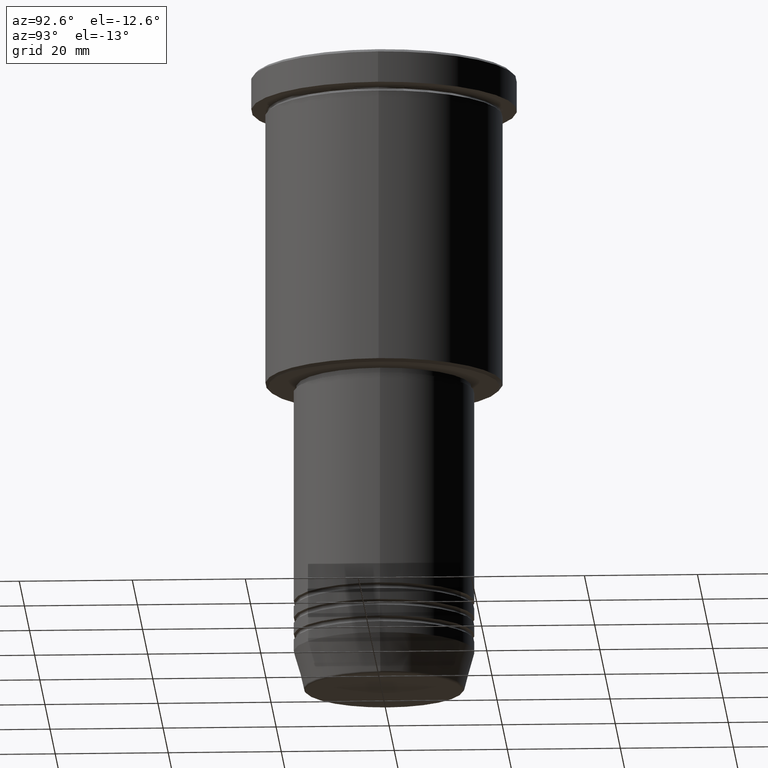
[diagram: clean part render]
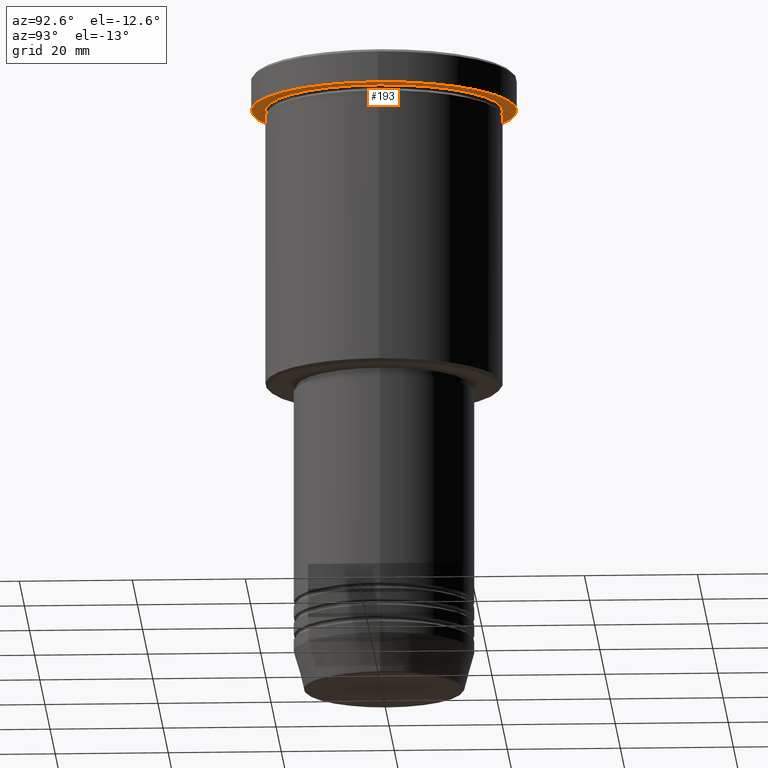
[diagram: same view with one face highlighted and labeled with its STEP entity id]
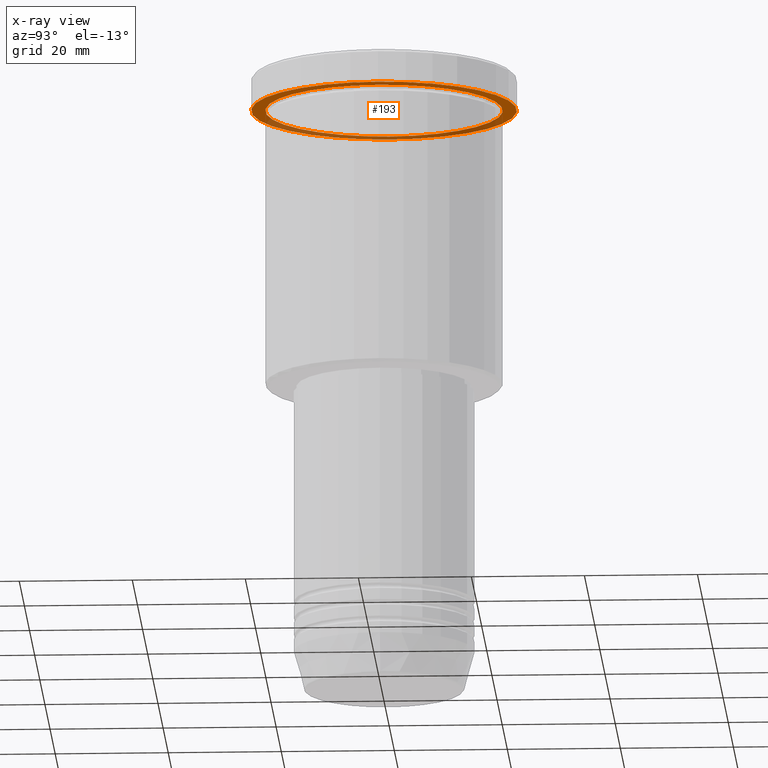
[diagram: x-ray of the same camera — body ghosted, the highlighted face saturated]
A machine part, auxiliary view. The second image highlights one B-rep face of the part: STEP entity #193.
The next image is the same camera in x-ray: the body ghosted, the highlighted face saturated — about 38% of this face is hidden behind the body in this view.
In plain terms, the highlighted planar face has unit normal (0, 0, -1).
Its self-contained STEP definition (entity closure, byte-faithful):
#44 = EDGE_CURVE ( 'NONE', #584, #63, #314, .T. ) ;
#63 = VERTEX_POINT ( 'NONE', #1063 ) ;
#80 = DIRECTION ( 'NONE',  ( 0.000000000000000000, 0.000000000000000000, -1.000000000000000000 ) ) ;
#82 = DIRECTION ( 'NONE',  ( 1.000000000000000000, 0.000000000000000000, 0.000000000000000000 ) ) ;
#90 = CARTESIAN_POINT ( 'NONE',  ( 21.00000000000000000, 2.571758278209441661E-15, -5.999999999999994671 ) ) ;
#112 = ORIENTED_EDGE ( 'NONE', *, *, #248, .T. ) ;
#151 = DIRECTION ( 'NONE',  ( -0.000000000000000000, -0.000000000000000000, 1.000000000000000000 ) ) ;
#169 = DIRECTION ( 'NONE',  ( -1.000000000000000000, 0.000000000000000000, 0.000000000000000000 ) ) ;
#170 = CARTESIAN_POINT ( 'NONE',  ( 0.000000000000000000, 0.000000000000000000, -5.999999999999994671 ) ) ;
#175 = DIRECTION ( 'NONE',  ( -1.000000000000000000, 0.000000000000000000, 0.000000000000000000 ) ) ;
#178 = CARTESIAN_POINT ( 'NONE',  ( 23.50000000000000000, 0.000000000000000000, -5.999999999999994671 ) ) ;
#189 = ORIENTED_EDGE ( 'NONE', *, *, #44, .F. ) ;
#193 = ADVANCED_FACE ( 'NONE', ( #285, #710 ), #363, .T. ) ;
#246 = AXIS2_PLACEMENT_3D ( 'NONE', #1163, #896, #82 ) ;
#248 = EDGE_CURVE ( 'NONE', #1090, #1039, #448, .T. ) ;
#266 = CIRCLE ( 'NONE', #246, 23.50000000000000000 ) ;
#285 = FACE_BOUND ( 'NONE', #309, .T. ) ;
#298 = AXIS2_PLACEMENT_3D ( 'NONE', #1178, #80, #460 ) ;
#309 = EDGE_LOOP ( 'NONE', ( #580, #112 ) ) ;
#314 = CIRCLE ( 'NONE', #542, 23.50000000000000000 ) ;
#363 = PLANE ( 'NONE',  #298 ) ;
#417 = CARTESIAN_POINT ( 'NONE',  ( 0.000000000000000000, 0.000000000000000000, -5.999999999999994671 ) ) ;
#448 = CIRCLE ( 'NONE', #899, 21.00000000000000000 ) ;
#459 = DIRECTION ( 'NONE',  ( -0.000000000000000000, -0.000000000000000000, 1.000000000000000000 ) ) ;
#460 = DIRECTION ( 'NONE',  ( -1.000000000000000000, 0.000000000000000000, -0.000000000000000000 ) ) ;
#486 = CIRCLE ( 'NONE', #1115, 21.00000000000000000 ) ;
#496 = CARTESIAN_POINT ( 'NONE',  ( -21.00000000000000000, 0.000000000000000000, -5.999999999999994671 ) ) ;
#517 = DIRECTION ( 'NONE',  ( 1.000000000000000000, 0.000000000000000000, 0.000000000000000000 ) ) ;
#542 = AXIS2_PLACEMENT_3D ( 'NONE', #417, #151, #517 ) ;
#580 = ORIENTED_EDGE ( 'NONE', *, *, #665, .T. ) ;
#584 = VERTEX_POINT ( 'NONE', #178 ) ;
#625 = DIRECTION ( 'NONE',  ( -0.000000000000000000, -0.000000000000000000, 1.000000000000000000 ) ) ;
#665 = EDGE_CURVE ( 'NONE', #1039, #1090, #486, .T. ) ;
#683 = EDGE_LOOP ( 'NONE', ( #189, #780 ) ) ;
#710 = FACE_OUTER_BOUND ( 'NONE', #683, .T. ) ;
#780 = ORIENTED_EDGE ( 'NONE', *, *, #1152, .F. ) ;
#896 = DIRECTION ( 'NONE',  ( -0.000000000000000000, -0.000000000000000000, 1.000000000000000000 ) ) ;
#899 = AXIS2_PLACEMENT_3D ( 'NONE', #170, #625, #175 ) ;
#981 = CARTESIAN_POINT ( 'NONE',  ( 0.000000000000000000, 0.000000000000000000, -5.999999999999994671 ) ) ;
#1039 = VERTEX_POINT ( 'NONE', #496 ) ;
#1063 = CARTESIAN_POINT ( 'NONE',  ( -23.50000000000000000, 2.877919977996280320E-15, -5.999999999999994671 ) ) ;
#1090 = VERTEX_POINT ( 'NONE', #90 ) ;
#1115 = AXIS2_PLACEMENT_3D ( 'NONE', #981, #459, #169 ) ;
#1152 = EDGE_CURVE ( 'NONE', #63, #584, #266, .T. ) ;
#1163 = CARTESIAN_POINT ( 'NONE',  ( 0.000000000000000000, 0.000000000000000000, -5.999999999999994671 ) ) ;
#1178 = CARTESIAN_POINT ( 'NONE',  ( 0.000000000000000000, 23.50000000000000000, -5.999999999999994671 ) ) ;